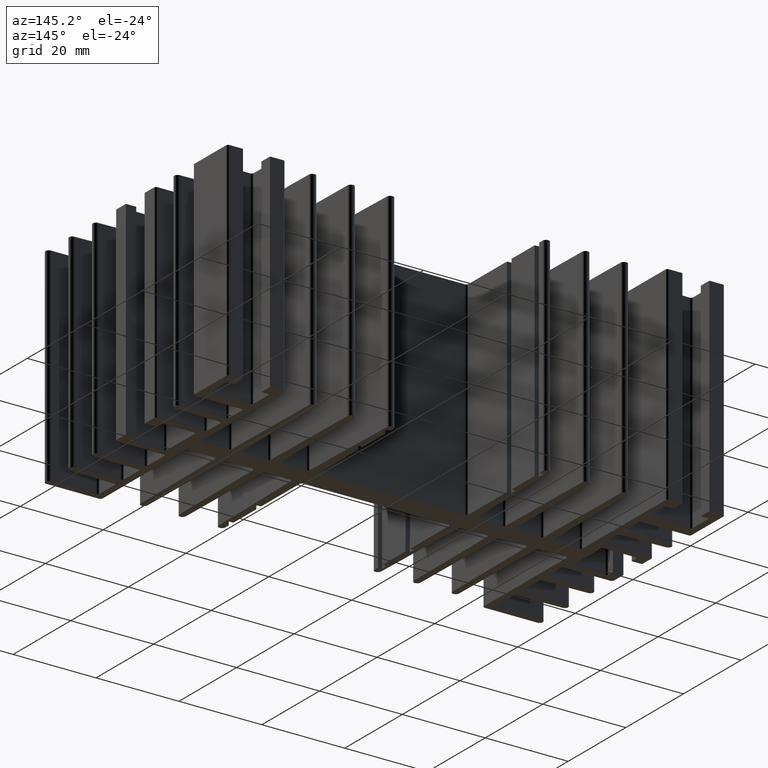
[diagram: clean part render]
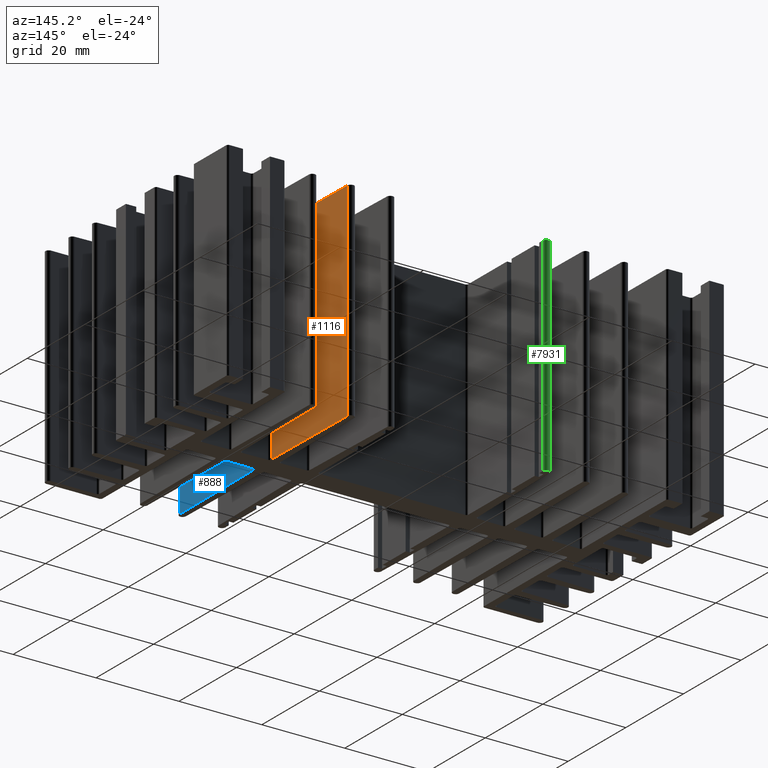
[diagram: same view with three faces highlighted in distinct colors, each labeled with its STEP entity id]
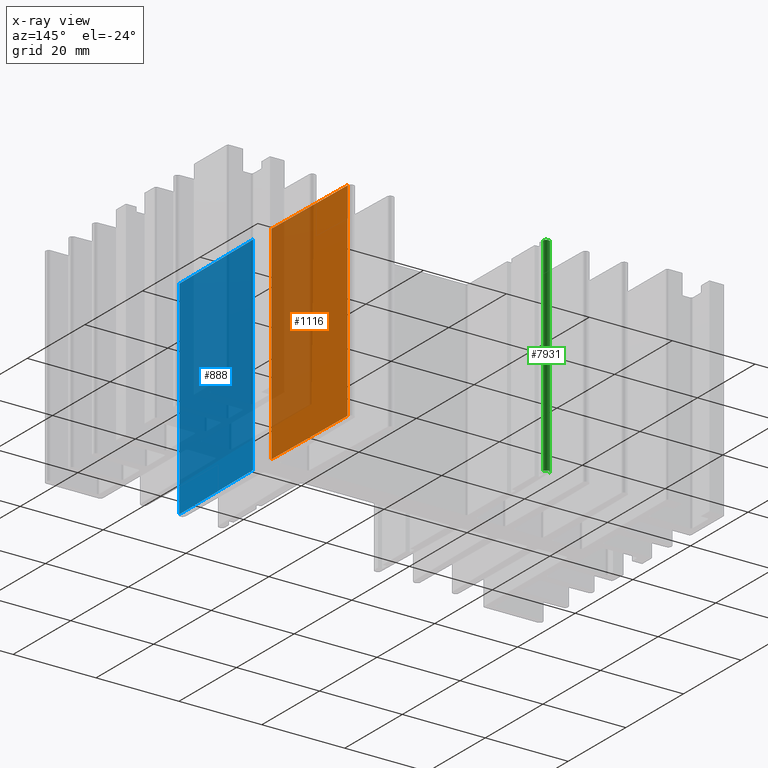
[diagram: x-ray of the same camera — body ghosted, the three highlighted faces saturated]
A machine part, auxiliary view with three faces highlighted in distinct colors.
The next image is the same camera in x-ray (body ghosted, the three faces saturated) — at least one of them is partly hidden behind the body in this view.
Their STEP definitions:

[orange] entity #1116 — the highlighted planar face has unit normal (-0.9999, -0.0113, 0).
#174 = CARTESIAN_POINT ( 'NONE',  ( 29.09994908572699757, 29.18096092804029951, 50.00000000000000000 ) ) ;
#596 = CARTESIAN_POINT ( 'NONE',  ( 29.09994908572699757, 29.18096092804029951, 0.0000000000000000000 ) ) ;
#953 = DIRECTION ( 'NONE',  ( 0.0000000000000000000, 0.0000000000000000000, -1.000000000000000000 ) ) ;
#970 = VECTOR ( 'NONE', #1395, 1000.000000000000114 ) ;
#1036 = VECTOR ( 'NONE', #4766, 1000.000000000000114 ) ;
#1116 = ADVANCED_FACE ( 'NONE', ( #2765 ), #5338, .F. ) ;
#1179 = EDGE_CURVE ( 'NONE', #1309, #3666, #4158, .T. ) ;
#1309 = VERTEX_POINT ( 'NONE', #3722 ) ;
#1395 = DIRECTION ( 'NONE',  ( -0.01130146482457424113, 0.9999361364071300828, 0.0000000000000000000 ) ) ;
#1487 = EDGE_CURVE ( 'NONE', #1309, #7991, #4595, .T. ) ;
#2129 = DIRECTION ( 'NONE',  ( -0.9999361364071301939, -0.01130146482457424287, 0.0000000000000000000 ) ) ;
#2197 = CARTESIAN_POINT ( 'NONE',  ( 29.39452908572699741, 3.116977928040265411, 0.0000000000000000000 ) ) ;
#2539 = LINE ( 'NONE', #5106, #4933 ) ;
#2565 = VECTOR ( 'NONE', #953, 1000.000000000000000 ) ;
#2765 = FACE_OUTER_BOUND ( 'NONE', #4949, .T. ) ;
#3019 = ORIENTED_EDGE ( 'NONE', *, *, #1487, .F. ) ;
#3102 = ORIENTED_EDGE ( 'NONE', *, *, #5595, .F. ) ;
#3231 = AXIS2_PLACEMENT_3D ( 'NONE', #7907, #2129, #4697 ) ;
#3666 = VERTEX_POINT ( 'NONE', #6388 ) ;
#3722 = CARTESIAN_POINT ( 'NONE',  ( 29.39452908572699741, 3.116977928040265411, 50.00000000000000000 ) ) ;
#4158 = LINE ( 'NONE', #6724, #2565 ) ;
#4595 = LINE ( 'NONE', #7173, #970 ) ;
#4697 = DIRECTION ( 'NONE',  ( -0.01130146482457424287, 0.9999361364071301939, 0.0000000000000000000 ) ) ;
#4766 = DIRECTION ( 'NONE',  ( -0.01130146482457424113, 0.9999361364071300828, 0.0000000000000000000 ) ) ;
#4933 = VECTOR ( 'NONE', #7681, 1000.000000000000000 ) ;
#4949 = EDGE_LOOP ( 'NONE', ( #5834, #3102, #3019, #6499 ) ) ;
#5106 = CARTESIAN_POINT ( 'NONE',  ( 29.09994908572699757, 29.18096092804029951, 50.00000000000000000 ) ) ;
#5338 = PLANE ( 'NONE',  #3231 ) ;
#5595 = EDGE_CURVE ( 'NONE', #7991, #6292, #2539, .T. ) ;
#5834 = ORIENTED_EDGE ( 'NONE', *, *, #6896, .T. ) ;
#6292 = VERTEX_POINT ( 'NONE', #596 ) ;
#6388 = CARTESIAN_POINT ( 'NONE',  ( 29.39452908572699741, 3.116977928040265411, 0.0000000000000000000 ) ) ;
#6499 = ORIENTED_EDGE ( 'NONE', *, *, #1179, .T. ) ;
#6724 = CARTESIAN_POINT ( 'NONE',  ( 29.39452908572699741, 3.116977928040265411, 50.00000000000000000 ) ) ;
#6896 = EDGE_CURVE ( 'NONE', #3666, #6292, #7969, .T. ) ;
#7173 = CARTESIAN_POINT ( 'NONE',  ( 29.39452908572699741, 3.116977928040265411, 50.00000000000000000 ) ) ;
#7681 = DIRECTION ( 'NONE',  ( 0.0000000000000000000, 0.0000000000000000000, -1.000000000000000000 ) ) ;
#7907 = CARTESIAN_POINT ( 'NONE',  ( 29.39452908572699741, 3.116977928040265411, 50.00000000000000000 ) ) ;
#7969 = LINE ( 'NONE', #2197, #1036 ) ;
#7991 = VERTEX_POINT ( 'NONE', #174 ) ;

[blue] entity #888 — the highlighted planar face has unit normal (-0.9999, 0.0113, 0).
#17 = EDGE_CURVE ( 'NONE', #1754, #7110, #1419, .T. ) ;
#22 = VERTEX_POINT ( 'NONE', #3355 ) ;
#91 = CARTESIAN_POINT ( 'NONE',  ( 29.09994855093420085, -29.23712296353699713, 0.0000000000000000000 ) ) ;
#211 = VECTOR ( 'NONE', #5573, 1000.000000000000227 ) ;
#292 = DIRECTION ( 'NONE',  ( 0.0000000000000000000, 0.0000000000000000000, 1.000000000000000000 ) ) ;
#440 = LINE ( 'NONE', #3006, #211 ) ;
#888 = ADVANCED_FACE ( 'NONE', ( #6698 ), #924, .F. ) ;
#924 = PLANE ( 'NONE',  #7587 ) ;
#1217 = CARTESIAN_POINT ( 'NONE',  ( 29.39452857359940197, -3.173140059754384623, 0.0000000000000000000 ) ) ;
#1417 = VECTOR ( 'NONE', #2064, 1000.000000000000227 ) ;
#1419 = LINE ( 'NONE', #3992, #2763 ) ;
#1754 = VERTEX_POINT ( 'NONE', #5015 ) ;
#1929 = DIRECTION ( 'NONE',  ( 0.0000000000000000000, 0.0000000000000000000, -1.000000000000000000 ) ) ;
#2064 = DIRECTION ( 'NONE',  ( 0.01130146573572122191, 0.9999361363968322092, 0.0000000000000000000 ) ) ;
#2655 = ORIENTED_EDGE ( 'NONE', *, *, #6593, .F. ) ;
#2763 = VECTOR ( 'NONE', #6559, 1000.000000000000000 ) ;
#2906 = VERTEX_POINT ( 'NONE', #91 ) ;
#3006 = CARTESIAN_POINT ( 'NONE',  ( 29.39452857359940197, -3.173140059754384623, 50.00000000000000000 ) ) ;
#3355 = CARTESIAN_POINT ( 'NONE',  ( 29.09994855093420085, -29.23712296353699713, 50.00000000000000000 ) ) ;
#3489 = CARTESIAN_POINT ( 'NONE',  ( 29.39452857359940197, -3.173140059754384623, 50.00000000000000000 ) ) ;
#3992 = CARTESIAN_POINT ( 'NONE',  ( 29.39452857359940197, -3.173140059754384623, 50.00000000000000000 ) ) ;
#4144 = ORIENTED_EDGE ( 'NONE', *, *, #4569, .T. ) ;
#4465 = EDGE_CURVE ( 'NONE', #22, #2906, #5142, .T. ) ;
#4569 = EDGE_CURVE ( 'NONE', #2906, #7110, #5274, .T. ) ;
#4901 = ORIENTED_EDGE ( 'NONE', *, *, #4465, .T. ) ;
#5015 = CARTESIAN_POINT ( 'NONE',  ( 29.39452857359940197, -3.173140059754384623, 50.00000000000000000 ) ) ;
#5111 = ORIENTED_EDGE ( 'NONE', *, *, #17, .F. ) ;
#5142 = LINE ( 'NONE', #7714, #5553 ) ;
#5274 = LINE ( 'NONE', #7841, #1417 ) ;
#5553 = VECTOR ( 'NONE', #1929, 1000.000000000000000 ) ;
#5573 = DIRECTION ( 'NONE',  ( 0.01130146573572122191, 0.9999361363968322092, 0.0000000000000000000 ) ) ;
#6063 = DIRECTION ( 'NONE',  ( -0.9999361363968323202, 0.01130146573572122365, 0.0000000000000000000 ) ) ;
#6559 = DIRECTION ( 'NONE',  ( 0.0000000000000000000, 0.0000000000000000000, -1.000000000000000000 ) ) ;
#6593 = EDGE_CURVE ( 'NONE', #22, #1754, #440, .T. ) ;
#6698 = FACE_OUTER_BOUND ( 'NONE', #6740, .T. ) ;
#6740 = EDGE_LOOP ( 'NONE', ( #4144, #5111, #2655, #4901 ) ) ;
#7110 = VERTEX_POINT ( 'NONE', #1217 ) ;
#7587 = AXIS2_PLACEMENT_3D ( 'NONE', #3489, #6063, #292 ) ;
#7714 = CARTESIAN_POINT ( 'NONE',  ( 29.09994855093420085, -29.23712296353699713, 50.00000000000000000 ) ) ;
#7841 = CARTESIAN_POINT ( 'NONE',  ( 29.39452857359940197, -3.173140059754384623, 0.0000000000000000000 ) ) ;

[green] entity #7931 — the highlighted cylindrical surface (edge-blend (fillet) strip) has radius 0.8 mm, axis along (0, 0, -1).
#90 = FACE_OUTER_BOUND ( 'NONE', #5757, .T. ) ;
#192 = VERTEX_POINT ( 'NONE', #2304 ) ;
#1296 = VECTOR ( 'NONE', #1791, 1000.000000000000000 ) ;
#1604 = ORIENTED_EDGE ( 'NONE', *, *, #4221, .F. ) ;
#1791 = DIRECTION ( 'NONE',  ( 0.0000000000000000000, 0.0000000000000000000, -1.000000000000000000 ) ) ;
#1991 = ORIENTED_EDGE ( 'NONE', *, *, #7117, .T. ) ;
#2028 = DIRECTION ( 'NONE',  ( -1.000000000000000000, 0.0000000000000000000, 0.0000000000000000000 ) ) ;
#2206 = CARTESIAN_POINT ( 'NONE',  ( -18.79999999862329929, 29.17191966045114881, 50.00000000000000000 ) ) ;
#2242 = CIRCLE ( 'NONE', #4937, 0.8000000000000090372 ) ;
#2304 = CARTESIAN_POINT ( 'NONE',  ( -19.59979276523630176, 29.19012763874565053, 50.00000000000000000 ) ) ;
#2459 = CARTESIAN_POINT ( 'NONE',  ( -18.79999999862329929, 29.17191966045114881, 0.0000000000000000000 ) ) ;
#2498 = CARTESIAN_POINT ( 'NONE',  ( -17.99999999862325240, 29.17191966045114881, 0.0000000000000000000 ) ) ;
#2558 = VERTEX_POINT ( 'NONE', #2498 ) ;
#2665 = CYLINDRICAL_SURFACE ( 'NONE', #7794, 0.8000000000000090372 ) ;
#3151 = LINE ( 'NONE', #5724, #7371 ) ;
#3162 = ORIENTED_EDGE ( 'NONE', *, *, #3954, .T. ) ;
#3733 = ORIENTED_EDGE ( 'NONE', *, *, #7424, .F. ) ;
#3734 = AXIS2_PLACEMENT_3D ( 'NONE', #2206, #4776, #7356 ) ;
#3954 = EDGE_CURVE ( 'NONE', #2558, #5857, #2242, .T. ) ;
#4221 = EDGE_CURVE ( 'NONE', #4571, #192, #6702, .T. ) ;
#4571 = VERTEX_POINT ( 'NONE', #4634 ) ;
#4634 = CARTESIAN_POINT ( 'NONE',  ( -17.99999999862325240, 29.17191966045114881, 50.00000000000000000 ) ) ;
#4776 = DIRECTION ( 'NONE',  ( 0.0000000000000000000, 0.0000000000000000000, 1.000000000000000000 ) ) ;
#4937 = AXIS2_PLACEMENT_3D ( 'NONE', #2459, #5031, #7606 ) ;
#4998 = LINE ( 'NONE', #7569, #1296 ) ;
#5031 = DIRECTION ( 'NONE',  ( 0.0000000000000000000, 0.0000000000000000000, 1.000000000000000000 ) ) ;
#5236 = CARTESIAN_POINT ( 'NONE',  ( -18.79999999862329929, 29.17191966045114881, 50.00000000000000000 ) ) ;
#5724 = CARTESIAN_POINT ( 'NONE',  ( -17.99999999862325240, 29.17191966045114881, 50.00000000000000000 ) ) ;
#5757 = EDGE_LOOP ( 'NONE', ( #3162, #3733, #1604, #1991 ) ) ;
#5857 = VERTEX_POINT ( 'NONE', #6424 ) ;
#6424 = CARTESIAN_POINT ( 'NONE',  ( -19.59979276523630176, 29.19012763874565053, 0.0000000000000000000 ) ) ;
#6702 = CIRCLE ( 'NONE', #3734, 0.8000000000000090372 ) ;
#7117 = EDGE_CURVE ( 'NONE', #4571, #2558, #3151, .T. ) ;
#7356 = DIRECTION ( 'NONE',  ( 1.000000000000000000, 0.0000000000000000000, 0.0000000000000000000 ) ) ;
#7371 = VECTOR ( 'NONE', #8310, 1000.000000000000000 ) ;
#7424 = EDGE_CURVE ( 'NONE', #192, #5857, #4998, .T. ) ;
#7569 = CARTESIAN_POINT ( 'NONE',  ( -19.59979276523630176, 29.19012763874565053, 50.00000000000000000 ) ) ;
#7606 = DIRECTION ( 'NONE',  ( 1.000000000000000000, 0.0000000000000000000, 0.0000000000000000000 ) ) ;
#7794 = AXIS2_PLACEMENT_3D ( 'NONE', #5236, #7807, #2028 ) ;
#7807 = DIRECTION ( 'NONE',  ( 0.0000000000000000000, 0.0000000000000000000, -1.000000000000000000 ) ) ;
#7931 = ADVANCED_FACE ( 'NONE', ( #90 ), #2665, .T. ) ;
#8310 = DIRECTION ( 'NONE',  ( 0.0000000000000000000, 0.0000000000000000000, -1.000000000000000000 ) ) ;